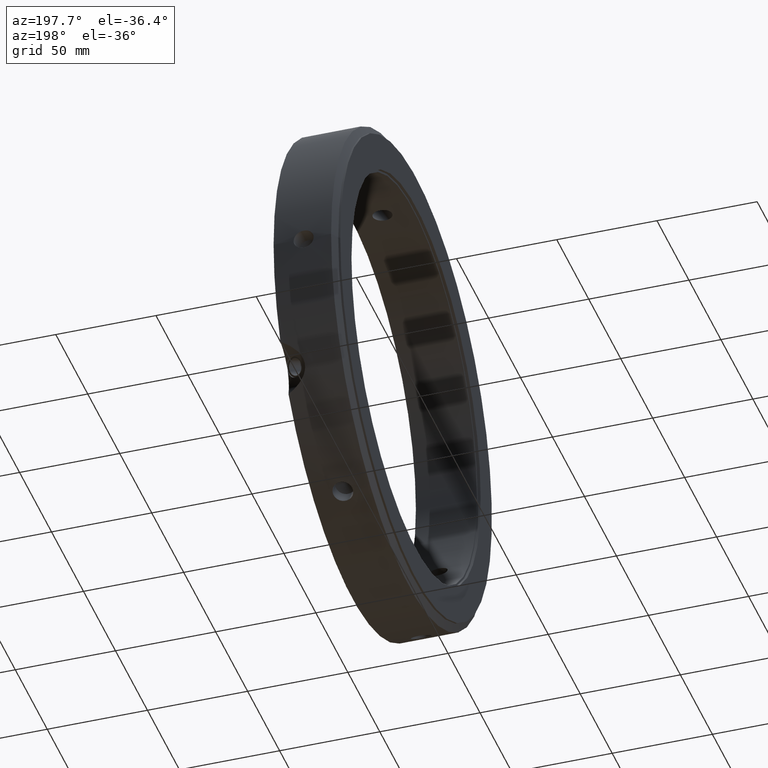
[diagram: clean part render]
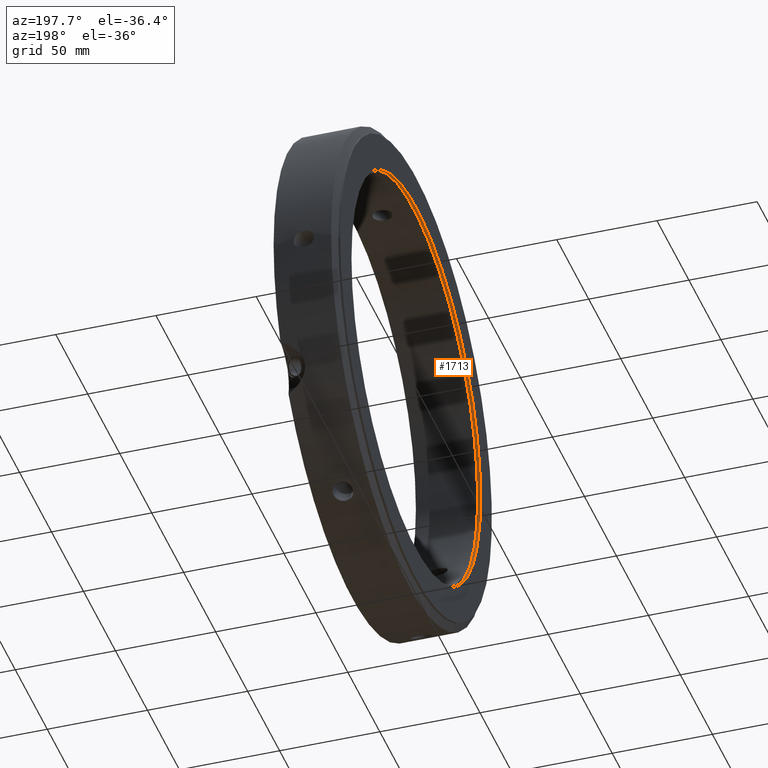
[diagram: same view with one face highlighted and labeled with its STEP entity id]
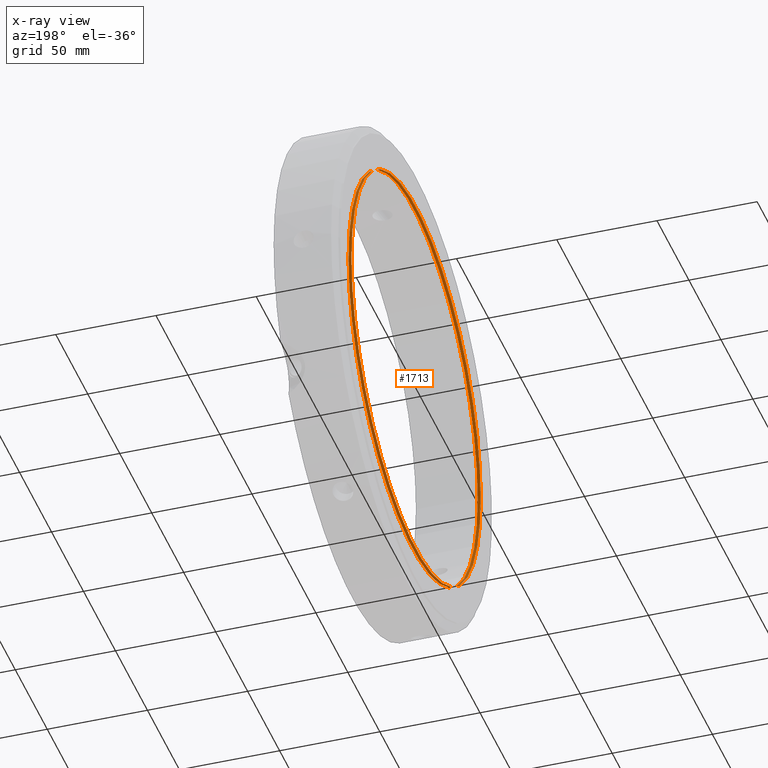
[diagram: x-ray of the same camera — body ghosted, the highlighted face saturated]
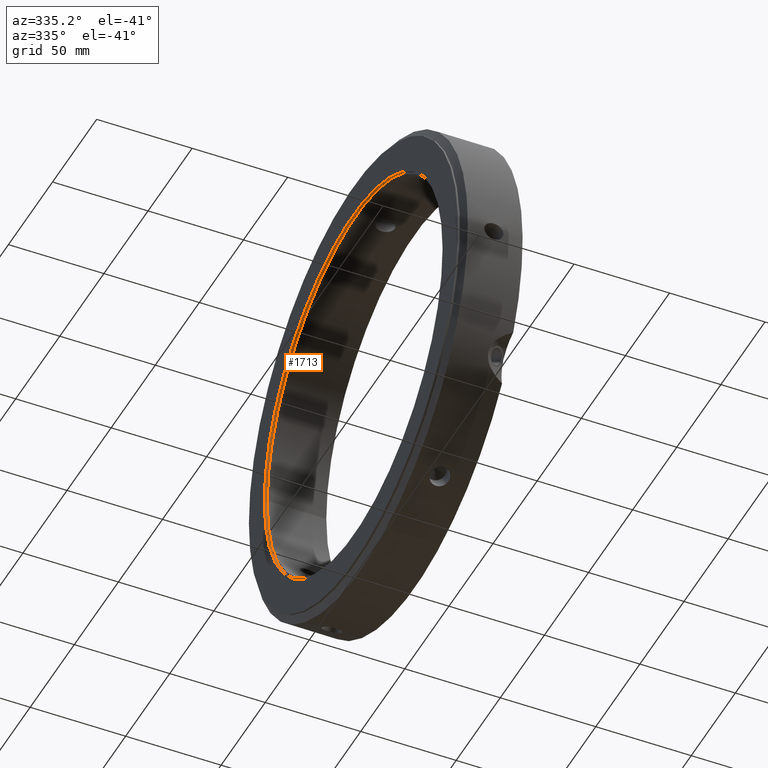
[diagram: same view with one face highlighted and labeled with its STEP entity id]
A machine part, auxiliary view. The second image highlights one B-rep face of the part: STEP entity #1713.
The next image is the same camera in x-ray: the body ghosted, the highlighted face saturated — about 0% of this face is hidden behind the body in this view.
A second angle (auxiliary view) of the same face is appended — the face is thin or edge-on in the first view.
In plain terms, the highlighted cylindrical surface (bore or boss wall) has radius 101 mm, axis along (1, 0, 0).
Its self-contained STEP definition (entity closure, byte-faithful):
#1671=CARTESIAN_POINT('',(1.49999999999997,101.00000000000001,0.0));
#1672=VERTEX_POINT('',#1671);
#1673=CARTESIAN_POINT('',(1.49999999999997,0.0,0.0));
#1674=DIRECTION('',(1.0,0.0,0.0));
#1675=DIRECTION('',(0.0,1.0,0.0));
#1676=AXIS2_PLACEMENT_3D('',#1673,#1674,#1675);
#1677=CIRCLE('',#1676,101.00000000000001);
#1678=EDGE_CURVE('',#1672,#1672,#1677,.T.);
#1694=CARTESIAN_POINT('',(0.74999999999997,0.0,0.0));
#1695=DIRECTION('',(1.0,0.0,0.0));
#1696=DIRECTION('',(0.0,1.0,0.0));
#1697=AXIS2_PLACEMENT_3D('',#1694,#1695,#1696);
#1698=CYLINDRICAL_SURFACE('',#1697,101.00000000000001);
#1699=CARTESIAN_POINT('',(-2.997602E-014,101.00000000000001,0.0));
#1700=VERTEX_POINT('',#1699);
#1701=CARTESIAN_POINT('',(-2.997602E-014,0.0,0.0));
#1702=DIRECTION('',(1.0,0.0,0.0));
#1703=DIRECTION('',(0.0,1.0,0.0));
#1704=AXIS2_PLACEMENT_3D('',#1701,#1702,#1703);
#1705=CIRCLE('',#1704,101.00000000000001);
#1706=EDGE_CURVE('',#1700,#1700,#1705,.T.);
#1707=ORIENTED_EDGE('',*,*,#1706,.F.);
#1708=EDGE_LOOP('',(#1707));
#1709=FACE_OUTER_BOUND('',#1708,.T.);
#1710=ORIENTED_EDGE('',*,*,#1678,.T.);
#1711=EDGE_LOOP('',(#1710));
#1712=FACE_BOUND('',#1711,.T.);
#1713=ADVANCED_FACE('',(#1709,#1712),#1698,.F.);